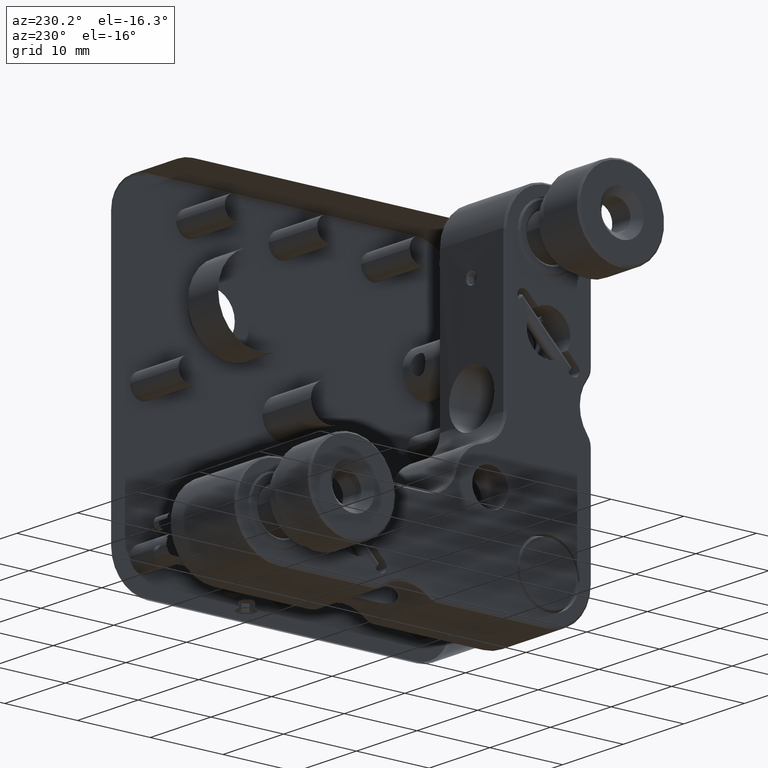
[diagram: clean part render]
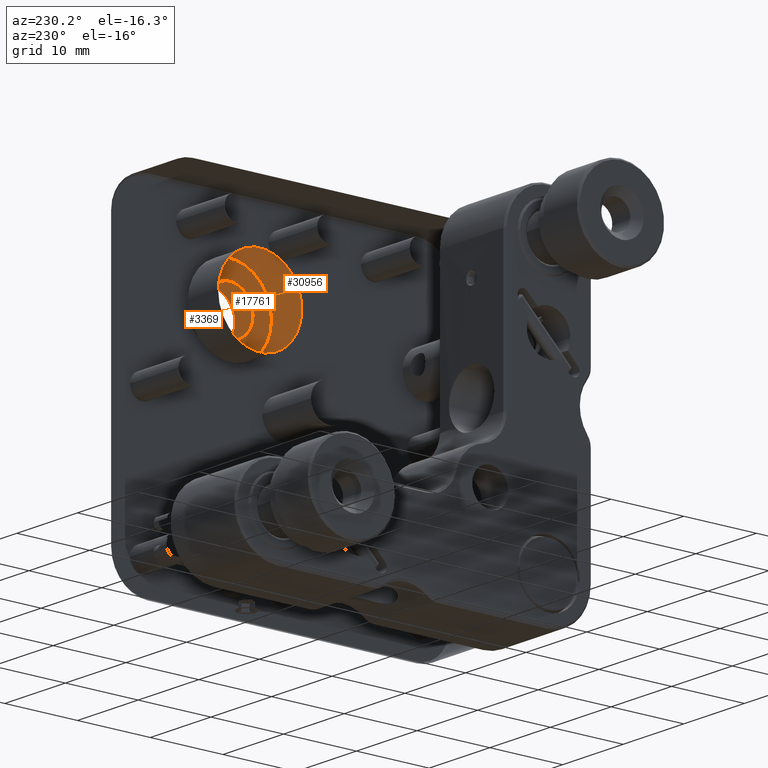
[diagram: same view with one multi-face feature highlighted, each face labeled with its STEP entity id]
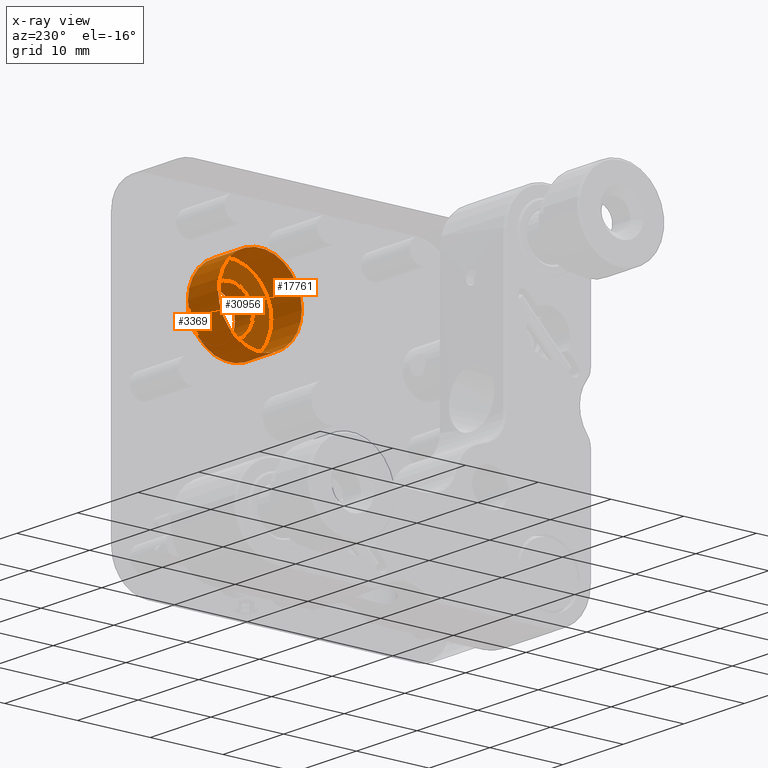
[diagram: x-ray of the same camera — body ghosted, the whole feature saturated]
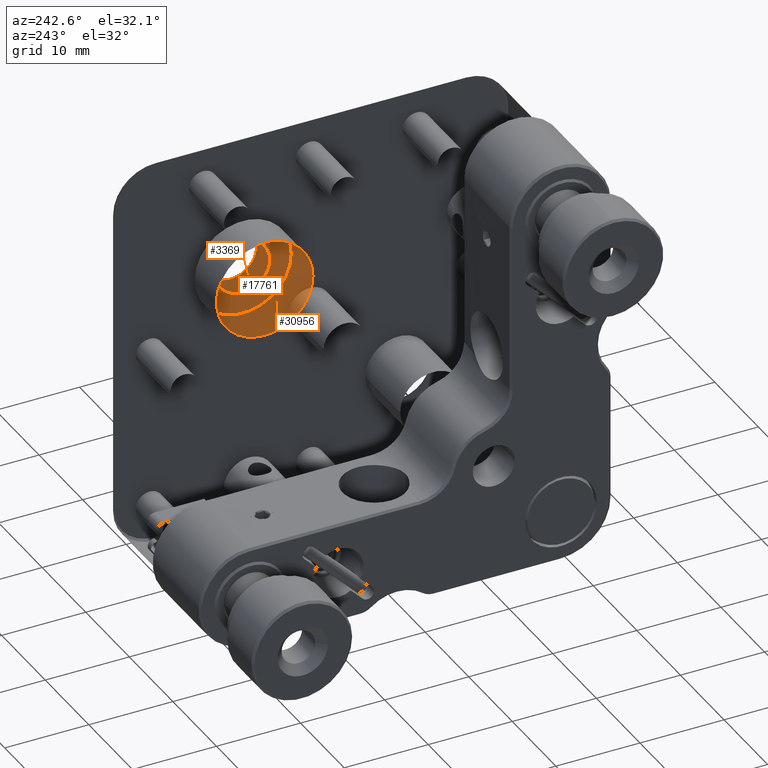
[diagram: same view with one multi-face feature highlighted, each face labeled with its STEP entity id]
A machine part, auxiliary view. The highlighted faces form ONE feature: a stepped (counterbored) hole: 2 coaxial cylindrical walls of radii 3.2 -> 5.75 mm joined by 1 annular planar shoulder face(s). The faces share edges in the B-rep.
The next image is the same camera in x-ray: the body ghosted and the whole hole feature saturated, so the bore chain is visible through the body.
A second angle (auxiliary view) of the same feature is appended — it is thin or edge-on in the first view.
Their STEP definitions:
[1] entity #30956 (Cylinder):
#119 = AXIS2_PLACEMENT_3D ( 'NONE', #7916, #12499, #24641 ) ;
#1011 = DIRECTION ( 'NONE',  ( 1.000000000000000000, -3.329283005738959424E-16, -6.793094355065668215E-18 ) ) ;
#1124 = CYLINDRICAL_SURFACE ( 'NONE', #7313, 5.750000000000000000 ) ;
#1859 = CIRCLE ( 'NONE', #28052, 5.750000000000000000 ) ;
#2659 = VERTEX_POINT ( 'NONE', #5023 ) ;
#3683 = EDGE_LOOP ( 'NONE', ( #4297 ) ) ;
#4001 = DIRECTION ( 'NONE',  ( -3.016910393003142859E-16, -1.000000000000000000, 0.000000000000000000 ) ) ;
#4297 = ORIENTED_EDGE ( 'NONE', *, *, #10286, .T. ) ;
#5023 = CARTESIAN_POINT ( 'NONE',  ( 8.496067811865479769, 3.749999999999985789, 9.500000000000003553 ) ) ;
#5854 = FACE_OUTER_BOUND ( 'NONE', #8728, .T. ) ;
#7313 = AXIS2_PLACEMENT_3D ( 'NONE', #11062, #20378, #29977 ) ;
#7916 = CARTESIAN_POINT ( 'NONE',  ( 8.496067811865481545, 9.499999999999985789, 9.500000000000003553 ) ) ;
#8728 = EDGE_LOOP ( 'NONE', ( #22154 ) ) ;
#10286 = EDGE_CURVE ( 'NONE', #2659, #2659, #14235, .T. ) ;
#11062 = CARTESIAN_POINT ( 'NONE',  ( 8.496067811865481545, 9.499999999999985789, 9.500000000000003553 ) ) ;
#11170 = VERTEX_POINT ( 'NONE', #29931 ) ;
#12499 = DIRECTION ( 'NONE',  ( 1.000000000000000000, -3.329283005738959424E-16, -6.793094355065668215E-18 ) ) ;
#14235 = CIRCLE ( 'NONE', #119, 5.750000000000000000 ) ;
#15907 = EDGE_CURVE ( 'NONE', #11170, #11170, #1859, .T. ) ;
#17882 = CARTESIAN_POINT ( 'NONE',  ( 13.49606781186547977, 9.499999999999984013, 9.500000000000003553 ) ) ;
#20378 = DIRECTION ( 'NONE',  ( -1.000000000000000000, 3.329283005738959424E-16, 6.793094355065668215E-18 ) ) ;
#22154 = ORIENTED_EDGE ( 'NONE', *, *, #15907, .F. ) ;
#24641 = DIRECTION ( 'NONE',  ( -3.016910393003142859E-16, -1.000000000000000000, 0.000000000000000000 ) ) ;
#27458 = FACE_OUTER_BOUND ( 'NONE', #3683, .T. ) ;
#28052 = AXIS2_PLACEMENT_3D ( 'NONE', #17882, #1011, #4001 ) ;
#29931 = CARTESIAN_POINT ( 'NONE',  ( 13.49606781186547799, 3.749999999999984457, 9.500000000000003553 ) ) ;
#29977 = DIRECTION ( 'NONE',  ( -3.016910393003142859E-16, -1.000000000000000000, 0.000000000000000000 ) ) ;
#30956 = ADVANCED_FACE ( 'NONE', ( #27458, #5854 ), #1124, .T. ) ;
[2] entity #3369 (Cylinder):
#240 = DIRECTION ( 'NONE',  ( -5.421010862427524142E-16, -1.000000000000000000, 0.000000000000000000 ) ) ;
#884 = EDGE_LOOP ( 'NONE', ( #9944 ) ) ;
#2912 = FACE_OUTER_BOUND ( 'NONE', #24748, .T. ) ;
#2956 = EDGE_CURVE ( 'NONE', #28841, #28841, #24019, .T. ) ;
#3189 = AXIS2_PLACEMENT_3D ( 'NONE', #27173, #15194, #17237 ) ;
#3369 = ADVANCED_FACE ( 'NONE', ( #2912, #12219 ), #24209, .T. ) ;
#5177 = VERTEX_POINT ( 'NONE', #29148 ) ;
#6703 = CIRCLE ( 'NONE', #3189, 3.199999999999998845 ) ;
#7751 = EDGE_CURVE ( 'NONE', #5177, #5177, #6703, .T. ) ;
#8904 = AXIS2_PLACEMENT_3D ( 'NONE', #11758, #19184, #23607 ) ;
#9944 = ORIENTED_EDGE ( 'NONE', *, *, #7751, .T. ) ;
#10338 = DIRECTION ( 'NONE',  ( -1.000000000000000000, 3.329283005738959424E-16, 6.793094355065668215E-18 ) ) ;
#10923 = AXIS2_PLACEMENT_3D ( 'NONE', #12535, #10338, #240 ) ;
#11758 = CARTESIAN_POINT ( 'NONE',  ( 16.49606781186547977, 9.499999999999982236, 9.500000000000003553 ) ) ;
#12219 = FACE_OUTER_BOUND ( 'NONE', #884, .T. ) ;
#12535 = CARTESIAN_POINT ( 'NONE',  ( 8.496067811865481545, 9.499999999999985789, 9.500000000000003553 ) ) ;
#15194 = DIRECTION ( 'NONE',  ( 1.000000000000000000, -3.329283005738959424E-16, -6.793094355065668215E-18 ) ) ;
#16403 = CARTESIAN_POINT ( 'NONE',  ( 16.49606781186547977, 6.299999999999983835, 9.500000000000003553 ) ) ;
#17237 = DIRECTION ( 'NONE',  ( -5.421010862427524142E-16, -1.000000000000000000, 0.000000000000000000 ) ) ;
#19184 = DIRECTION ( 'NONE',  ( 1.000000000000000000, -3.329283005738959424E-16, -6.793094355065668215E-18 ) ) ;
#23607 = DIRECTION ( 'NONE',  ( 0.000000000000000000, -1.000000000000000000, 0.000000000000000000 ) ) ;
#24019 = CIRCLE ( 'NONE', #8904, 3.199999999999998845 ) ;
#24209 = CYLINDRICAL_SURFACE ( 'NONE', #10923, 3.199999999999998845 ) ;
#24748 = EDGE_LOOP ( 'NONE', ( #30680 ) ) ;
#27173 = CARTESIAN_POINT ( 'NONE',  ( 13.49606781186548154, 9.499999999999984013, 9.500000000000003553 ) ) ;
#28841 = VERTEX_POINT ( 'NONE', #16403 ) ;
#29148 = CARTESIAN_POINT ( 'NONE',  ( 13.49606781186547977, 6.299999999999985612, 9.500000000000003553 ) ) ;
#30680 = ORIENTED_EDGE ( 'NONE', *, *, #2956, .F. ) ;
[3] entity #17761 (Plane):
#314 = DIRECTION ( 'NONE',  ( 3.329283005738955973E-16, 1.000000000000000000, 0.000000000000000000 ) ) ;
#1011 = DIRECTION ( 'NONE',  ( 1.000000000000000000, -3.329283005738959424E-16, -6.793094355065668215E-18 ) ) ;
#1859 = CIRCLE ( 'NONE', #28052, 5.750000000000000000 ) ;
#3189 = AXIS2_PLACEMENT_3D ( 'NONE', #27173, #15194, #17237 ) ;
#4001 = DIRECTION ( 'NONE',  ( -3.016910393003142859E-16, -1.000000000000000000, 0.000000000000000000 ) ) ;
#5177 = VERTEX_POINT ( 'NONE', #29148 ) ;
#6703 = CIRCLE ( 'NONE', #3189, 3.199999999999998845 ) ;
#7205 = AXIS2_PLACEMENT_3D ( 'NONE', #24274, #10245, #314 ) ;
#7751 = EDGE_CURVE ( 'NONE', #5177, #5177, #6703, .T. ) ;
#10245 = DIRECTION ( 'NONE',  ( 1.000000000000000000, -3.329283005738955973E-16, -6.793094355065668215E-18 ) ) ;
#11170 = VERTEX_POINT ( 'NONE', #29931 ) ;
#12173 = ORIENTED_EDGE ( 'NONE', *, *, #7751, .F. ) ;
#12760 = FACE_OUTER_BOUND ( 'NONE', #14396, .T. ) ;
#13967 = ORIENTED_EDGE ( 'NONE', *, *, #15907, .T. ) ;
#14396 = EDGE_LOOP ( 'NONE', ( #13967 ) ) ;
#14806 = FACE_BOUND ( 'NONE', #18508, .T. ) ;
#15194 = DIRECTION ( 'NONE',  ( 1.000000000000000000, -3.329283005738959424E-16, -6.793094355065668215E-18 ) ) ;
#15907 = EDGE_CURVE ( 'NONE', #11170, #11170, #1859, .T. ) ;
#17237 = DIRECTION ( 'NONE',  ( -5.421010862427524142E-16, -1.000000000000000000, 0.000000000000000000 ) ) ;
#17761 = ADVANCED_FACE ( 'NONE', ( #12760, #14806 ), #24434, .T. ) ;
#17882 = CARTESIAN_POINT ( 'NONE',  ( 13.49606781186547977, 9.499999999999984013, 9.500000000000003553 ) ) ;
#18508 = EDGE_LOOP ( 'NONE', ( #12173 ) ) ;
#24274 = CARTESIAN_POINT ( 'NONE',  ( 13.49606781186547799, 6.299999999999984723, 9.500000000000003553 ) ) ;
#24434 = PLANE ( 'NONE',  #7205 ) ;
#27173 = CARTESIAN_POINT ( 'NONE',  ( 13.49606781186548154, 9.499999999999984013, 9.500000000000003553 ) ) ;
#28052 = AXIS2_PLACEMENT_3D ( 'NONE', #17882, #1011, #4001 ) ;
#29148 = CARTESIAN_POINT ( 'NONE',  ( 13.49606781186547977, 6.299999999999985612, 9.500000000000003553 ) ) ;
#29931 = CARTESIAN_POINT ( 'NONE',  ( 13.49606781186547799, 3.749999999999984457, 9.500000000000003553 ) ) ;